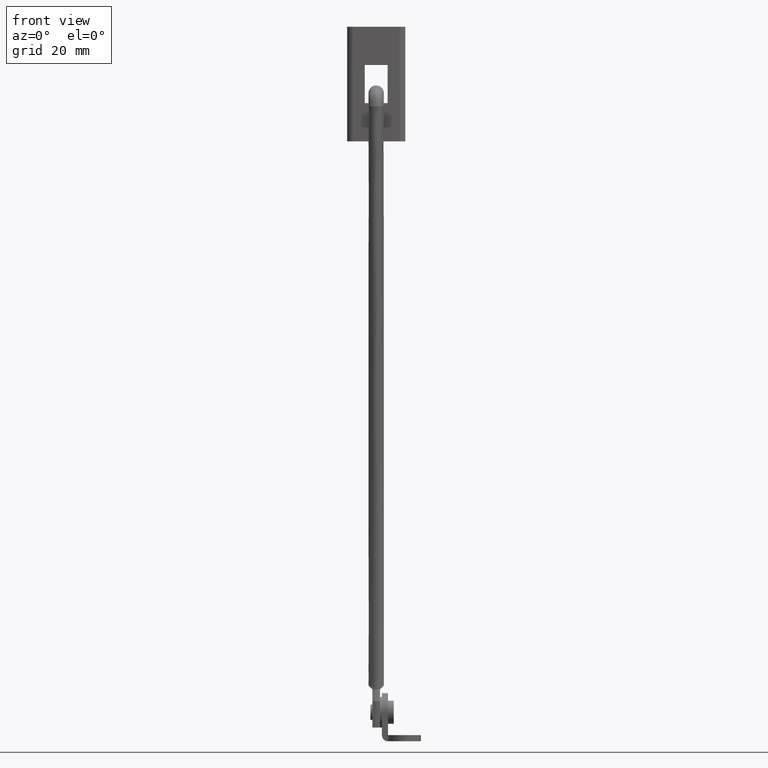
[diagram: clean part render]
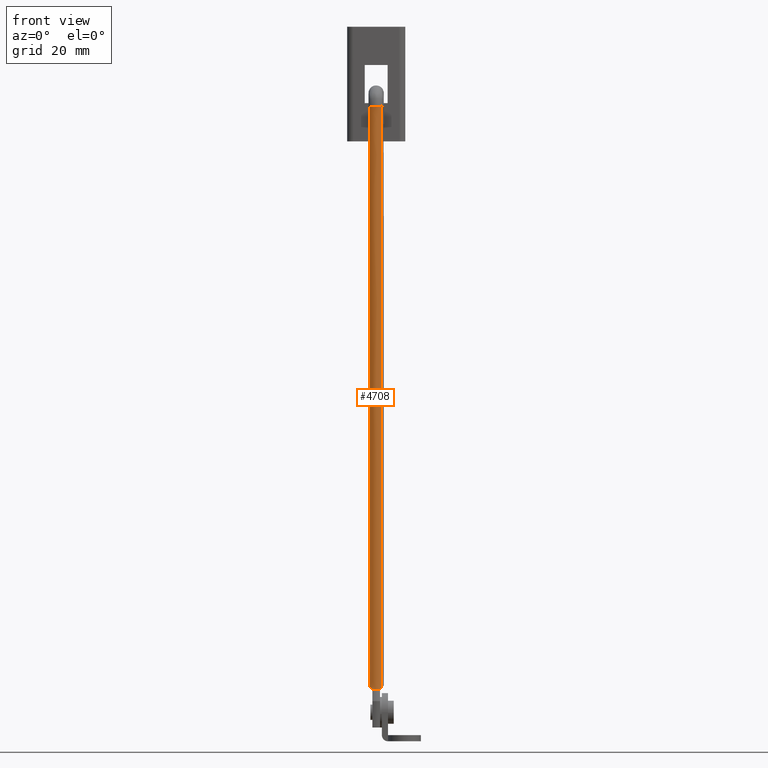
[diagram: same view with one face highlighted and labeled with its STEP entity id]
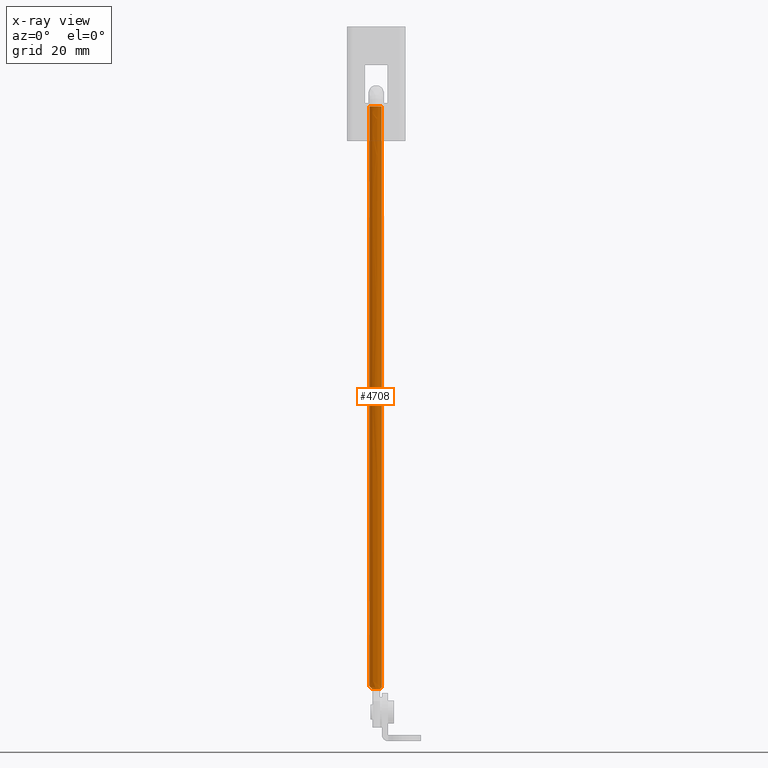
[diagram: x-ray of the same camera — body ghosted, the highlighted face saturated]
A machine part, front view. The second image highlights one B-rep face of the part: STEP entity #4708.
The next image is the same camera in x-ray: the body ghosted, the highlighted face saturated — about 0% of this face is hidden behind the body in this view.
In plain terms, the highlighted face is a freeform B-spline surface patch.
Its self-contained STEP definition (entity closure, byte-faithful):
#4485=CARTESIAN_POINT('',(-6.009700728052110,-1.437736901717347,166.099995000001510));
#4486=VERTEX_POINT('',#4485);
#4502=CARTESIAN_POINT('',(-6.009699796439448,-1.437736000847461,13.990283204165690));
#4503=VERTEX_POINT('',#4502);
#4504=CARTESIAN_POINT('',(-6.009699796439448,-1.437736000847461,13.990283204165690));
#4505=CARTESIAN_POINT('',(-6.009700728052110,-1.437736901717347,166.099995000001510));
#4506=QUASI_UNIFORM_CURVE('',1,(#4504,#4505),.UNSPECIFIED.,.F.,.U.);
#4507=EDGE_CURVE('',#4503,#4486,#4506,.T.);
#4541=CARTESIAN_POINT('',(-9.123246632440694,-1.015084685275298,14.323243632461161));
#4542=VERTEX_POINT('',#4541);
#4558=CARTESIAN_POINT('',(-9.123246632388550,-1.015084685363907,166.099995000001510));
#4559=VERTEX_POINT('',#4558);
#4560=CARTESIAN_POINT('',(-9.123246632440694,-1.015084685275298,14.323243632461161));
#4561=CARTESIAN_POINT('',(-9.123246632388550,-1.015084685363907,166.099995000001510));
#4562=QUASI_UNIFORM_CURVE('',1,(#4560,#4561),.UNSPECIFIED.,.F.,.U.);
#4563=EDGE_CURVE('',#4542,#4559,#4562,.T.);
#4628=CARTESIAN_POINT('',(-9.123246632420166,-1.015084685310224,9.787498074918588));
#4629=CARTESIAN_POINT('',(-8.108161947109942,-2.738338317730200,9.787498074918588));
#4630=CARTESIAN_POINT('',(-6.384908314689966,-1.723253632419976,9.787498074918588));
#4631=CARTESIAN_POINT('',(-6.180358627409422,-1.602763385925099,9.787498074918588));
#4632=CARTESIAN_POINT('',(-6.009699796964280,-1.437736001354960,9.787498074918586));
#4633=CARTESIAN_POINT('',(-9.123246632420166,-1.015084685310234,170.007807426460490));
#4634=CARTESIAN_POINT('',(-8.108161947109942,-2.738338317730209,170.007807426460460));
#4635=CARTESIAN_POINT('',(-6.384908314689966,-1.723253632419986,170.007807426460490));
#4636=CARTESIAN_POINT('',(-6.180358627409422,-1.602763385925109,170.007807426460460));
#4637=CARTESIAN_POINT('',(-6.009699796964280,-1.437736001354969,170.007807426460490));
#4645=(BOUNDED_SURFACE()B_SPLINE_SURFACE(2,1,((#4628,#4633),(#4629,#4634),(#4630,#4635),(#4631,#4636),(#4632,#4637)),.UNSPECIFIED.,.F.,.F.,.U.)B_SPLINE_SURFACE_WITH_KNOTS((3,2,3),(2,2),(0.0,3.313708498984760,3.843901858822322),(0.0,160.220309351541910),.UNSPECIFIED.)GEOMETRIC_REPRESENTATION_ITEM()RATIONAL_B_SPLINE_SURFACE(((1.0,1.0),(0.707106781186548,0.707106781186548),(1.0,1.0),(0.953137084989848,0.953137084989848),(0.921270302782944,0.921270302782944)))REPRESENTATION_ITEM('')SURFACE());
#4646=CARTESIAN_POINT('',(-9.123246632388550,-1.015084685363907,166.099995000001510));
#4647=CARTESIAN_POINT('',(-8.543081047039957,-2.000000000000008,166.099995000001540));
#4648=CARTESIAN_POINT('',(-7.399993000000189,-2.000000000000008,166.099995000001510));
#4649=CARTESIAN_POINT('',(-6.591151420963863,-2.000000000000009,166.099995000001480));
#4650=CARTESIAN_POINT('',(-6.009700728052110,-1.437736901717347,166.099995000001540));
#4658=(BOUNDED_CURVE()B_SPLINE_CURVE(2,(#4646,#4647,#4648,#4649,#4650),.UNSPECIFIED.,.F.,.U.)B_SPLINE_CURVE_WITH_KNOTS((3,2,3),(0.086609863622664,0.250000000000000,0.372468789145359),.UNSPECIFIED.)CURVE()GEOMETRIC_REPRESENTATION_ITEM()RATIONAL_B_SPLINE_CURVE((0.867366727519237,0.808576548136293,1.0,0.856518888572119,0.853613440998662))REPRESENTATION_ITEM(''));
#4659=EDGE_CURVE('',#4559,#4486,#4658,.T.);
#4660=ORIENTED_EDGE('',*,*,#4659,.F.);
#4661=ORIENTED_EDGE('',*,*,#4563,.F.);
#4662=CARTESIAN_POINT('',(-8.400001000000001,-1.732046188742010,13.599997999999900));
#4663=VERTEX_POINT('',#4662);
#4664=CARTESIAN_POINT('',(-8.400001000000001,-1.732046188742010,13.599997999999900));
#4665=CARTESIAN_POINT('',(-8.856002151271254,-1.468770993054780,14.055999151271106));
#4666=CARTESIAN_POINT('',(-9.123246632440694,-1.015084685275298,14.323243632461161));
#4674=(BOUNDED_CURVE()B_SPLINE_CURVE(2,(#4664,#4665,#4666),.UNSPECIFIED.,.F.,.U.)B_SPLINE_CURVE_WITH_KNOTS((3,3),(0.0,0.245925687345230),.UNSPECIFIED.)CURVE()GEOMETRIC_REPRESENTATION_ITEM()RATIONAL_B_SPLINE_CURVE((1.0,0.934104978618440,0.933031070940435))REPRESENTATION_ITEM(''));
#4675=EDGE_CURVE('',#4663,#4542,#4674,.T.);
#4676=ORIENTED_EDGE('',*,*,#4675,.F.);
#4677=CARTESIAN_POINT('',(-6.399985000000391,-1.732046188742225,13.599997999999900));
#4678=VERTEX_POINT('',#4677);
#4679=CARTESIAN_POINT('',(-6.399985000000399,-1.732046188742211,13.599997999999900));
#4680=CARTESIAN_POINT('',(-7.399993000000257,-2.309407235210520,13.599997999999902));
#4681=CARTESIAN_POINT('',(-8.400001000000001,-1.732046188742010,13.599997999999900));
#4689=(BOUNDED_CURVE()B_SPLINE_CURVE(2,(#4679,#4680,#4681),.UNSPECIFIED.,.F.,.U.)CURVE()GEOMETRIC_REPRESENTATION_ITEM()QUASI_UNIFORM_CURVE()RATIONAL_B_SPLINE_CURVE((1.0,0.866023094371091,1.0))REPRESENTATION_ITEM(''));
#4690=EDGE_CURVE('',#4678,#4663,#4689,.T.);
#4691=ORIENTED_EDGE('',*,*,#4690,.F.);
#4692=CARTESIAN_POINT('',(-6.009699796439449,-1.437736000847462,13.990283204165689));
#4693=CARTESIAN_POINT('',(-6.186723659020053,-1.608918382765014,13.813259340980215));
#4694=CARTESIAN_POINT('',(-6.399985000000391,-1.732046188742225,13.599997999999900));
#4702=(BOUNDED_CURVE()B_SPLINE_CURVE(2,(#4692,#4693,#4694),.UNSPECIFIED.,.F.,.U.)B_SPLINE_CURVE_WITH_KNOTS((3,3),(0.880805114123539,1.0),.UNSPECIFIED.)CURVE()GEOMETRIC_REPRESENTATION_ITEM()RATIONAL_B_SPLINE_CURVE((0.951351540209785,0.968062101856100,1.0))REPRESENTATION_ITEM(''));
#4703=EDGE_CURVE('',#4503,#4678,#4702,.T.);
#4704=ORIENTED_EDGE('',*,*,#4703,.F.);
#4705=ORIENTED_EDGE('',*,*,#4507,.T.);
#4706=EDGE_LOOP('',(#4660,#4661,#4676,#4691,#4704,#4705));
#4707=FACE_OUTER_BOUND('',#4706,.T.);
#4708=ADVANCED_FACE('',(#4707),#4645,.T.);